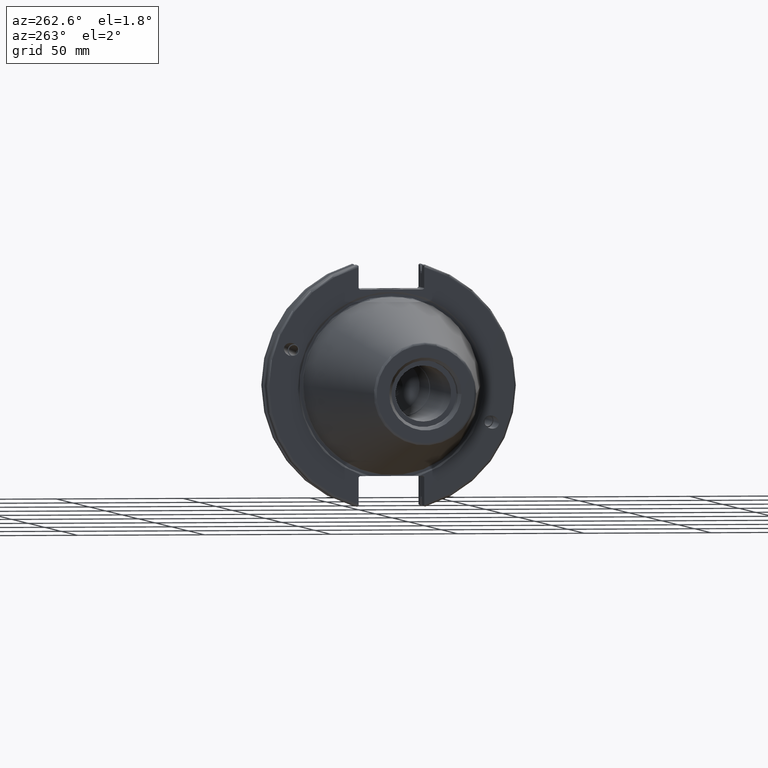
[diagram: clean part render]
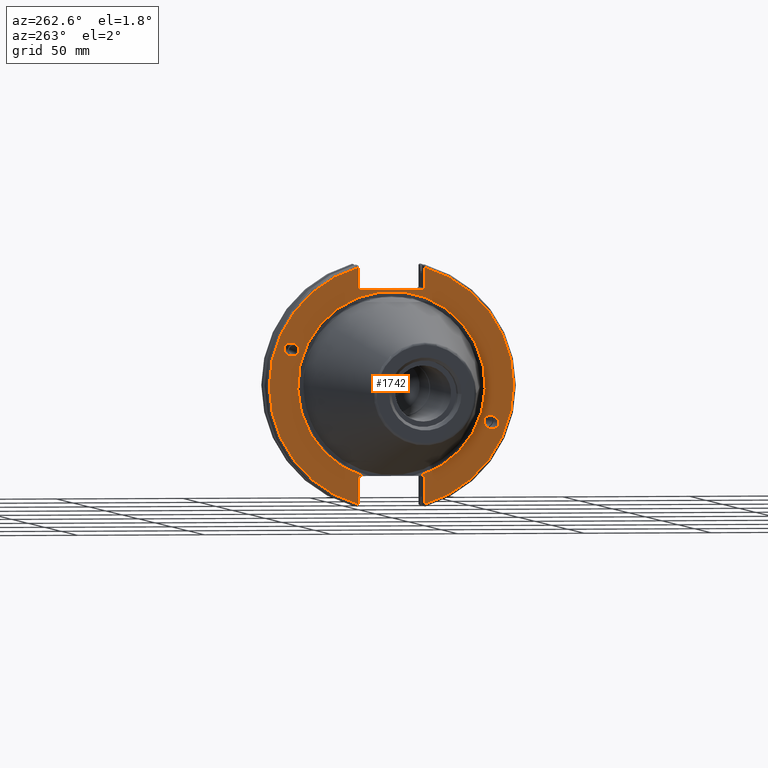
[diagram: same view with one face highlighted and labeled with its STEP entity id]
A machine part, auxiliary view. The second image highlights one B-rep face of the part: STEP entity #1742.
In plain terms, the highlighted planar face has unit normal (-1, 0, 0).
Its self-contained STEP definition (entity closure, byte-faithful):
#33=ELLIPSE('',#1885,3.05193647190365,2.50000000000001);
#34=ELLIPSE('',#1920,3.05193647190365,2.50000000000001);
#76=PLANE('',#1943);
#120=FACE_BOUND('',#342,.T.);
#121=FACE_BOUND('',#343,.T.);
#229=FACE_OUTER_BOUND('',#341,.T.);
#341=EDGE_LOOP('',(#1472,#1473,#1474,#1475,#1476,#1477,#1478,#1479,#1480,
#1481,#1482,#1483,#1484,#1485));
#342=EDGE_LOOP('',(#1486));
#343=EDGE_LOOP('',(#1487));
#441=LINE('',#3246,#544);
#444=LINE('',#3296,#547);
#452=LINE('',#3332,#555);
#456=LINE('',#3400,#559);
#457=LINE('',#3402,#560);
#458=LINE('',#3404,#561);
#459=LINE('',#3405,#562);
#460=LINE('',#3407,#563);
#461=LINE('',#3409,#564);
#462=LINE('',#3413,#565);
#463=LINE('',#3414,#566);
#544=VECTOR('',#2317,10.);
#547=VECTOR('',#2326,10.);
#555=VECTOR('',#2336,10.);
#559=VECTOR('',#2362,10.);
#560=VECTOR('',#2363,10.);
#561=VECTOR('',#2364,10.);
#562=VECTOR('',#2365,10.);
#563=VECTOR('',#2366,10.);
#564=VECTOR('',#2367,10.);
#565=VECTOR('',#2370,10.);
#566=VECTOR('',#2371,10.);
#662=CIRCLE('',#1935,48.2125);
#665=CIRCLE('',#1942,48.2125);
#666=CIRCLE('',#1944,37.);
#761=VERTEX_POINT('',#2925);
#800=VERTEX_POINT('',#3189);
#809=VERTEX_POINT('',#3243);
#810=VERTEX_POINT('',#3245);
#816=VERTEX_POINT('',#3293);
#817=VERTEX_POINT('',#3295);
#825=VERTEX_POINT('',#3324);
#826=VERTEX_POINT('',#3331);
#834=VERTEX_POINT('',#3390);
#835=VERTEX_POINT('',#3399);
#836=VERTEX_POINT('',#3401);
#837=VERTEX_POINT('',#3403);
#838=VERTEX_POINT('',#3406);
#839=VERTEX_POINT('',#3408);
#840=VERTEX_POINT('',#3410);
#841=VERTEX_POINT('',#3412);
#962=EDGE_CURVE('',#761,#761,#33,.T.);
#1015=EDGE_CURVE('',#800,#800,#34,.T.);
#1029=EDGE_CURVE('',#810,#809,#441,.T.);
#1039=EDGE_CURVE('',#817,#816,#444,.T.);
#1051=EDGE_CURVE('',#826,#825,#452,.T.);
#1056=EDGE_CURVE('',#817,#825,#662,.T.);
#1065=EDGE_CURVE('',#810,#834,#665,.T.);
#1067=EDGE_CURVE('',#835,#816,#456,.T.);
#1068=EDGE_CURVE('',#835,#836,#457,.T.);
#1069=EDGE_CURVE('',#837,#836,#458,.T.);
#1070=EDGE_CURVE('',#837,#834,#459,.T.);
#1071=EDGE_CURVE('',#838,#809,#460,.T.);
#1072=EDGE_CURVE('',#838,#839,#461,.T.);
#1073=EDGE_CURVE('',#839,#840,#666,.T.);
#1074=EDGE_CURVE('',#840,#841,#462,.T.);
#1075=EDGE_CURVE('',#826,#841,#463,.T.);
#1472=ORIENTED_EDGE('',*,*,#1056,.F.);
#1473=ORIENTED_EDGE('',*,*,#1039,.T.);
#1474=ORIENTED_EDGE('',*,*,#1067,.F.);
#1475=ORIENTED_EDGE('',*,*,#1068,.T.);
#1476=ORIENTED_EDGE('',*,*,#1069,.F.);
#1477=ORIENTED_EDGE('',*,*,#1070,.T.);
#1478=ORIENTED_EDGE('',*,*,#1065,.F.);
#1479=ORIENTED_EDGE('',*,*,#1029,.T.);
#1480=ORIENTED_EDGE('',*,*,#1071,.F.);
#1481=ORIENTED_EDGE('',*,*,#1072,.T.);
#1482=ORIENTED_EDGE('',*,*,#1073,.T.);
#1483=ORIENTED_EDGE('',*,*,#1074,.T.);
#1484=ORIENTED_EDGE('',*,*,#1075,.F.);
#1485=ORIENTED_EDGE('',*,*,#1051,.T.);
#1486=ORIENTED_EDGE('',*,*,#962,.T.);
#1487=ORIENTED_EDGE('',*,*,#1015,.T.);
#1742=ADVANCED_FACE('',(#229,#120,#121),#76,.T.);
#1885=AXIS2_PLACEMENT_3D('',#2927,#2208,#2209);
#1920=AXIS2_PLACEMENT_3D('',#3191,#2294,#2295);
#1935=AXIS2_PLACEMENT_3D('',#3354,#2342,#2343);
#1942=AXIS2_PLACEMENT_3D('',#3391,#2358,#2359);
#1943=AXIS2_PLACEMENT_3D('',#3398,#2360,#2361);
#1944=AXIS2_PLACEMENT_3D('',#3411,#2368,#2369);
#2208=DIRECTION('center_axis',(1.,0.,0.));
#2209=DIRECTION('ref_axis',(0.,-0.939692620785909,-0.342020143325667));
#2294=DIRECTION('center_axis',(1.,0.,0.));
#2295=DIRECTION('ref_axis',(0.,0.939692620785909,0.342020143325667));
#2317=DIRECTION('',(0.,0.,1.));
#2326=DIRECTION('',(0.,0.,-1.));
#2336=DIRECTION('',(0.,0.,-1.));
#2342=DIRECTION('center_axis',(1.,0.,0.));
#2343=DIRECTION('ref_axis',(0.,-1.,1.60812264967664E-16));
#2358=DIRECTION('center_axis',(1.,0.,0.));
#2359=DIRECTION('ref_axis',(0.,1.,-6.12323399573677E-17));
#2360=DIRECTION('center_axis',(-1.,0.,0.));
#2361=DIRECTION('ref_axis',(0.,0.,1.));
#2362=DIRECTION('',(0.,-0.707106781186549,0.707106781186546));
#2363=DIRECTION('',(0.,1.,0.));
#2364=DIRECTION('',(0.,-0.707106781186549,-0.707106781186546));
#2365=DIRECTION('',(0.,0.,1.));
#2366=DIRECTION('',(0.,0.707106781186548,-0.707106781186548));
#2367=DIRECTION('',(0.,-1.,0.));
#2368=DIRECTION('center_axis',(1.,0.,0.));
#2369=DIRECTION('ref_axis',(0.,0.,-1.));
#2370=DIRECTION('',(0.,-1.,0.));
#2371=DIRECTION('',(0.,0.707106781186549,0.707106781186546));
#2925=CARTESIAN_POINT('',(1.5,-36.5992078912529,-13.3210222701368));
#2927=CARTESIAN_POINT('Origin',(1.5,-39.4670900730082,-14.3648460196781));
#3189=CARTESIAN_POINT('',(1.5,36.5992078912529,13.3210222701368));
#3191=CARTESIAN_POINT('Origin',(1.5,39.4670900730082,14.3648460196781));
#3243=CARTESIAN_POINT('',(1.5,12.95,-35.806));
#3245=CARTESIAN_POINT('',(1.5,12.95,-46.4407434937254));
#3246=CARTESIAN_POINT('',(1.5,12.95,-17.653));
#3293=CARTESIAN_POINT('',(1.5,-12.95,38.219));
#3295=CARTESIAN_POINT('',(1.5,-12.95,46.4407434937254));
#3296=CARTESIAN_POINT('',(1.5,-12.95,18.8595));
#3324=CARTESIAN_POINT('',(1.5,-12.95,-46.4407434937254));
#3331=CARTESIAN_POINT('',(1.5,-12.95,-35.806));
#3332=CARTESIAN_POINT('',(1.5,-12.95,-17.653));
#3354=CARTESIAN_POINT('Origin',(1.5,0.,0.));
#3390=CARTESIAN_POINT('',(1.5,12.95,46.4407434937254));
#3391=CARTESIAN_POINT('Origin',(1.5,0.,0.));
#3398=CARTESIAN_POINT('Origin',(1.5,49.2125,0.));
#3399=CARTESIAN_POINT('',(1.5,-12.45,37.719));
#3400=CARTESIAN_POINT('',(1.5,12.2703750000001,12.998625));
#3401=CARTESIAN_POINT('',(1.5,12.45,37.719));
#3402=CARTESIAN_POINT('',(1.5,24.60625,37.719));
#3403=CARTESIAN_POINT('',(1.5,12.95,38.219));
#3404=CARTESIAN_POINT('',(1.5,12.335875,37.604875));
#3405=CARTESIAN_POINT('',(1.5,12.95,18.8595));
#3406=CARTESIAN_POINT('',(1.5,12.45,-35.306));
#3407=CARTESIAN_POINT('',(1.5,12.939125,-35.795125));
#3408=CARTESIAN_POINT('',(1.49999999999999,11.0673557817575,-35.306));
#3409=CARTESIAN_POINT('',(1.5,24.60625,-35.306));
#3410=CARTESIAN_POINT('',(1.5,-11.0673557817575,-35.306));
#3411=CARTESIAN_POINT('Origin',(1.5,0.,0.));
#3412=CARTESIAN_POINT('',(1.5,-12.45,-35.306));
#3413=CARTESIAN_POINT('',(1.5,24.60625,-35.306));
#3414=CARTESIAN_POINT('',(1.5,11.6671250000001,-11.188875));